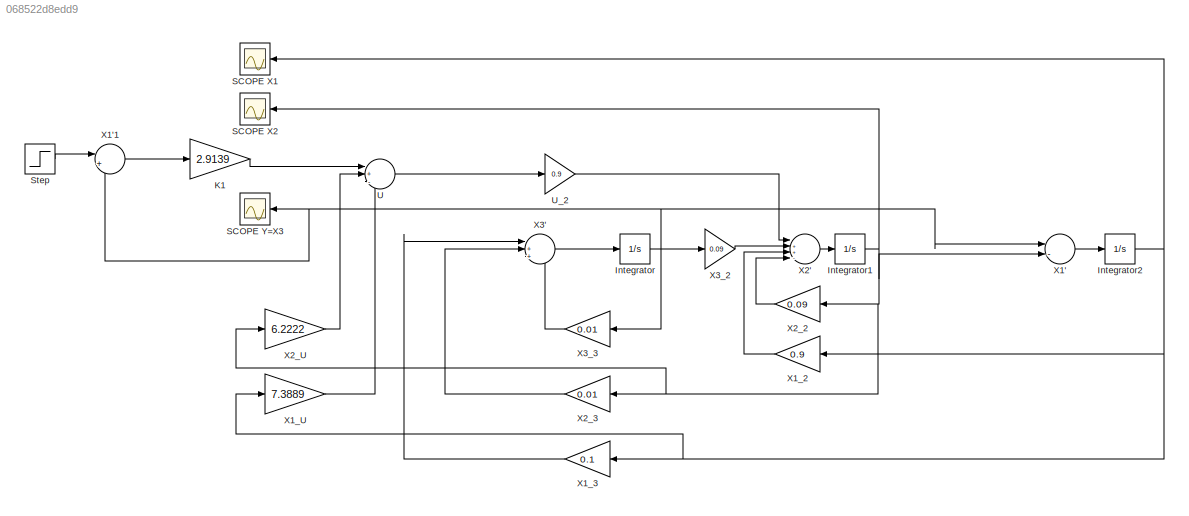
MODEL slx_068522d8edd9
KIND model
CONFIG AbsTol = auto
CONFIG EnableMultiTasking = off
CONFIG FixedStep = auto
CONFIG MaxStep = auto
CONFIG MinStep = auto
CONFIG RelTol = 1e-3
CONFIG SampleTimeConstraint = Unconstrained
CONFIG SolverName = VariableStepAuto
CONFIG StartTime = 0.0
CONFIG StopTime = 10.0
BLOCK [Integrator] Integrator
  Ports = [1, 1]
BLOCK [Integrator] Integrator1
  Ports = [1, 1]
BLOCK [Integrator] Integrator2
  Ports = [1, 1]
BLOCK [Gain] K1
  Gain = 2.9139
BLOCK [Scope] SCOPE X1
  Floating = off
  NumInputPorts = 1
  Ports = [1]
  ScopeSpecificationString = Simulink.scopes.TimeScopeBlockCfg('CurrentConfiguration', extmgr.ConfigurationSet(extmgr.Configuration('Core','General UI',true),extmgr.Configuration('Core','Source UI',true),extmgr.Configuration('Sources','WiredSimulink',true,'DataLoggingVariableName','ScopeData1'),extmgr.Configuration('Visuals','Time Domain',true,'SerializedDisplays',{struct('MinYLimReal','-113.71748','MaxYLimReal','1023.45732',...<+1386ch>
BLOCK [Scope] SCOPE X2
  Floating = off
  NumInputPorts = 1
  Ports = [1]
  ScopeSpecificationString = Simulink.scopes.TimeScopeBlockCfg('CurrentConfiguration', extmgr.ConfigurationSet(extmgr.Configuration('Core','General UI',true),extmgr.Configuration('Core','Source UI',true),extmgr.Configuration('Sources','WiredSimulink',true,'DataLoggingVariableName','ScopeData2'),extmgr.Configuration('Visuals','Time Domain',true,'SerializedDisplays',{struct('MinYLimReal','-0.09822','MaxYLimReal','0.88395','YLab...<+1362ch>
BLOCK [Scope] SCOPE Y=X3
  Floating = off
  NumInputPorts = 1
  Ports = [1]
  ScopeSpecificationString = Simulink.scopes.TimeScopeBlockCfg('CurrentConfiguration', extmgr.ConfigurationSet(extmgr.Configuration('Core','General UI',true),extmgr.Configuration('Core','Source UI',true),extmgr.Configuration('Sources','WiredSimulink',true),extmgr.Configuration('Visuals','Time Domain',true,'SerializedDisplays',{struct('MinYLimReal','-0.02464','MaxYLimReal','0.22176','YLabelReal','','MinYLimMag','0.00000','MaxY...<+1328ch>
BLOCK [Step] Step
  SampleTime = 0
BLOCK [Sum] U
  Inputs = |+--
  NameLocation = top
  Ports = [3, 1]
BLOCK [Gain] U_2
  Gain = 0.9
BLOCK [Sum] X1'
  Inputs = |-+
  NameLocation = top
  Ports = [2, 1]
BLOCK [Sum] X1'1
  Inputs = |+-
  NameLocation = top
  Ports = [2, 1]
BLOCK [Gain] X1_2
  Gain = 0.9
BLOCK [Gain] X1_3
  Gain = 0.1
BLOCK [Gain] X1_U
  Gain = 7.3889
BLOCK [Sum] X2'
  Inputs = |++--
  NameLocation = top
  Ports = [4, 1]
BLOCK [Gain] X2_2
  Gain = 0.09
BLOCK [Gain] X2_3
  Gain = 0.01
BLOCK [Gain] X2_U
  Gain = 6.2222
BLOCK [Sum] X3'
  Inputs = |++-
  NameLocation = top
  Ports = [3, 1]
BLOCK [Gain] X3_2
  Gain = 0.09
BLOCK [Gain] X3_3
  Gain = 0.01
NET Integrator1:1 -> SCOPE X2:1, X1':2, X2_2:1, X2_3:1, X2_U:1
NET Integrator2:1 -> SCOPE X1:1, X1_2:1, X1_3:1, X1_U:1
NET Integrator:1 -> SCOPE Y=X3:1, X1'1:2, X1':1, X3_2:1, X3_3:1
LINE K1:1 -> U:1
LINE Step:1 -> X1'1:1
LINE U:1 -> U_2:1
LINE U_2:1 -> X2':1
LINE X1'1:1 -> K1:1
LINE X1':1 -> Integrator2:1
LINE X1_2:1 -> X2':3
LINE X1_3:1 -> X3':1
LINE X1_U:1 -> U:3
LINE X2':1 -> Integrator1:1
LINE X2_2:1 -> X2':4
LINE X2_3:1 -> X3':2
LINE X2_U:1 -> U:2
LINE X3':1 -> Integrator:1
LINE X3_2:1 -> X2':2
LINE X3_3:1 -> X3':3
note: NET lines group one-source signal fan-out (src -> all destinations, sorted); 1:1 wires keep LINE
